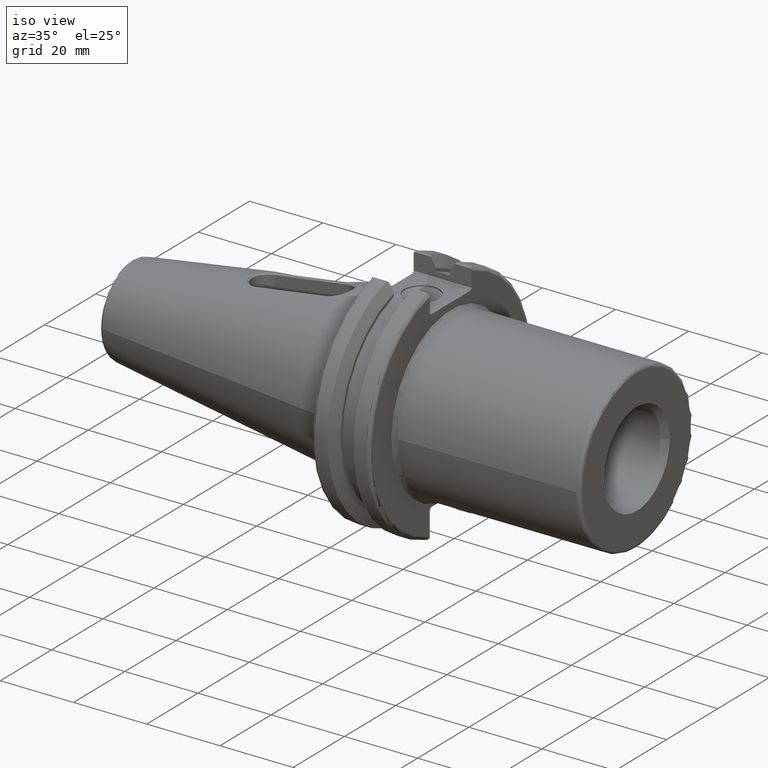
[diagram: clean part render]
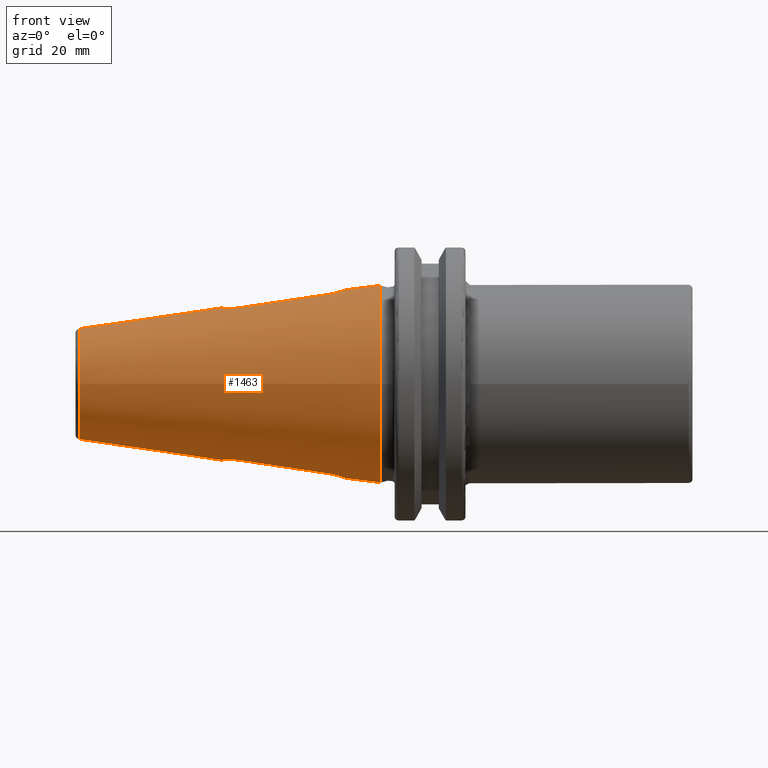
[diagram: tour spotlight — one face highlighted and labeled with its STEP entity id]
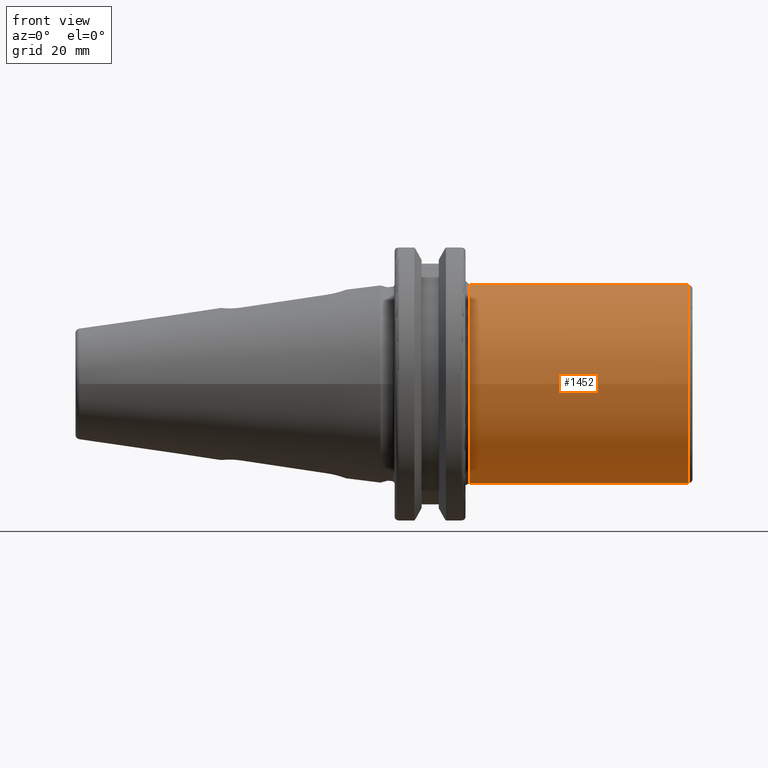
[diagram: tour spotlight — one face highlighted and labeled with its STEP entity id]
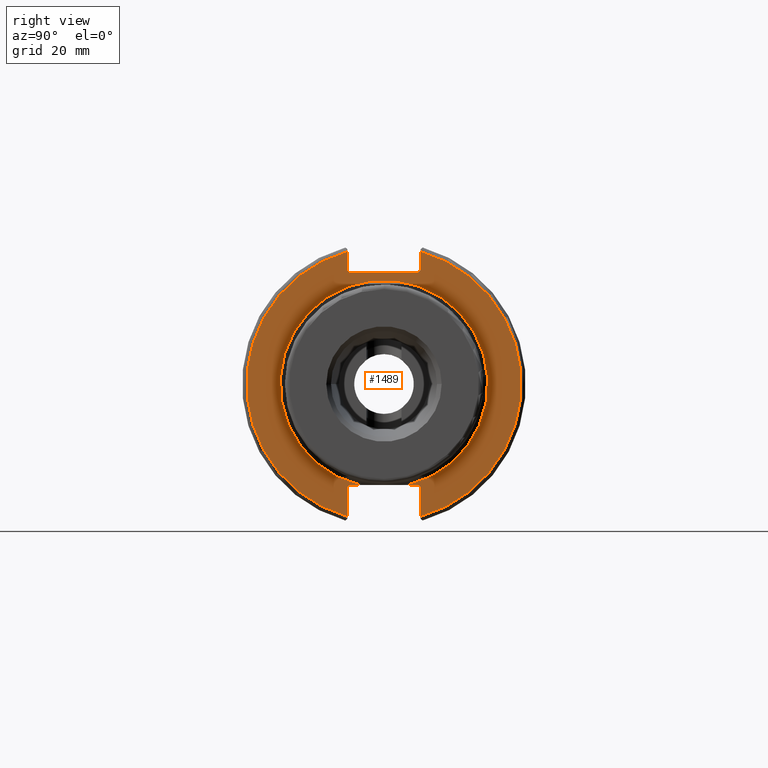
[diagram: tour spotlight — one face highlighted and labeled with its STEP entity id]
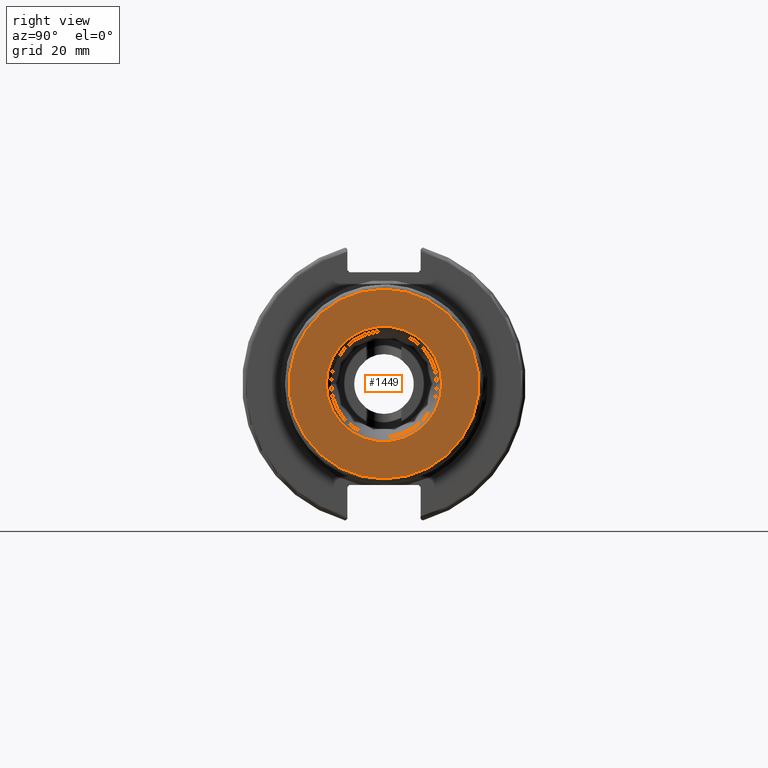
[diagram: tour spotlight — one face highlighted and labeled with its STEP entity id]
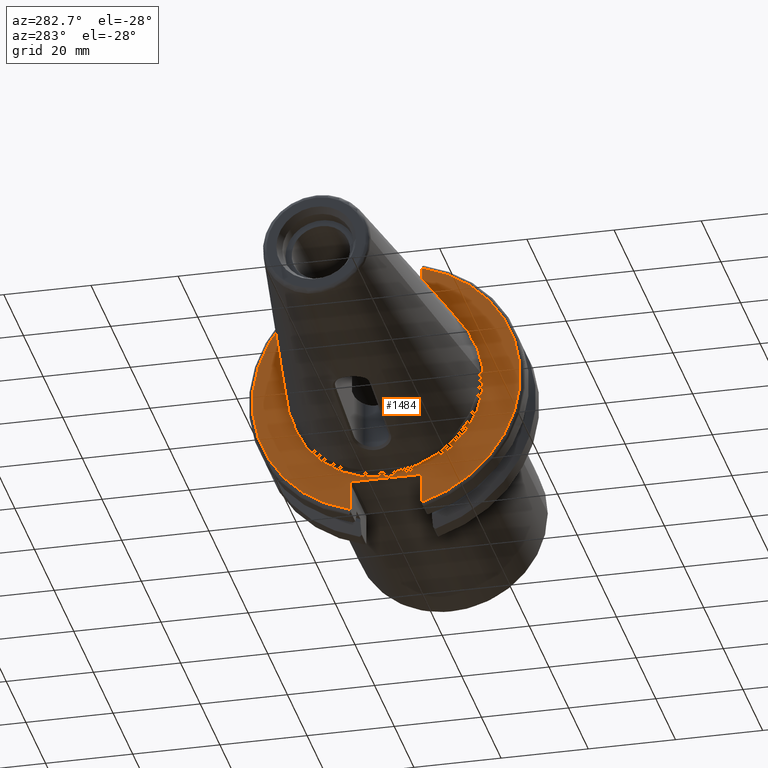
[diagram: tour spotlight — one face highlighted and labeled with its STEP entity id]
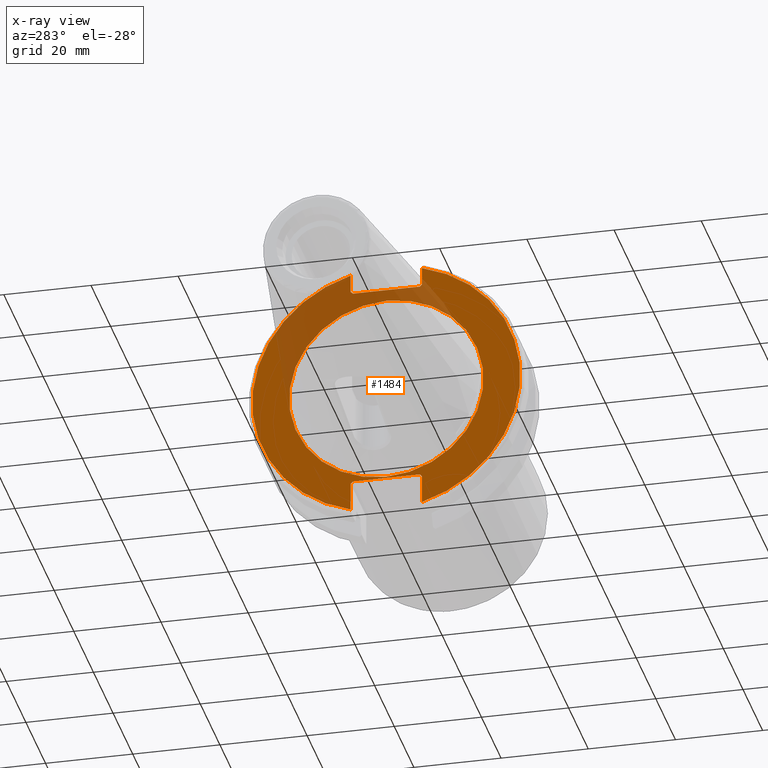
[diagram: x-ray of the same camera — body ghosted, this tour face saturated]
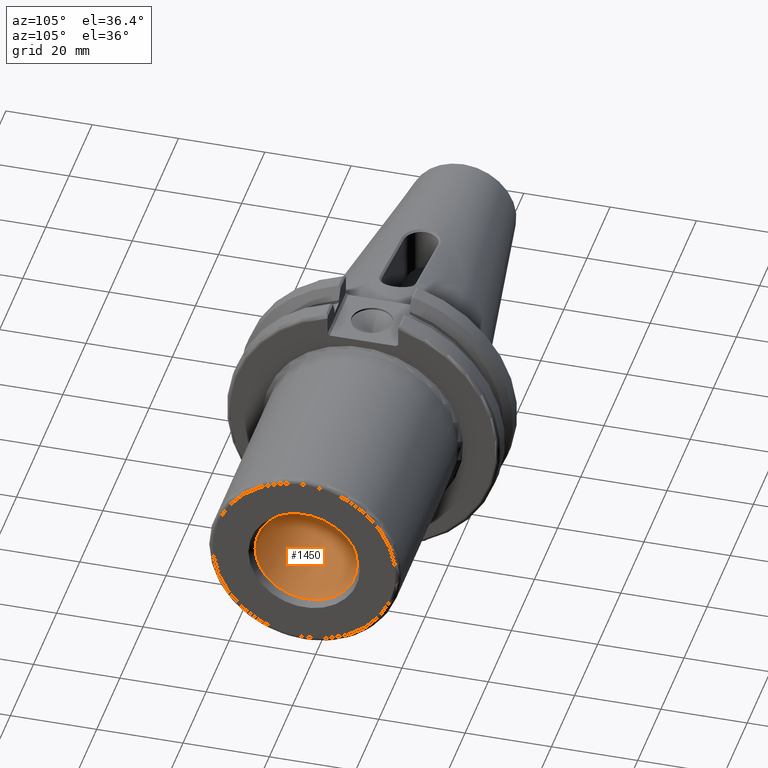
[diagram: tour spotlight — one face highlighted and labeled with its STEP entity id]
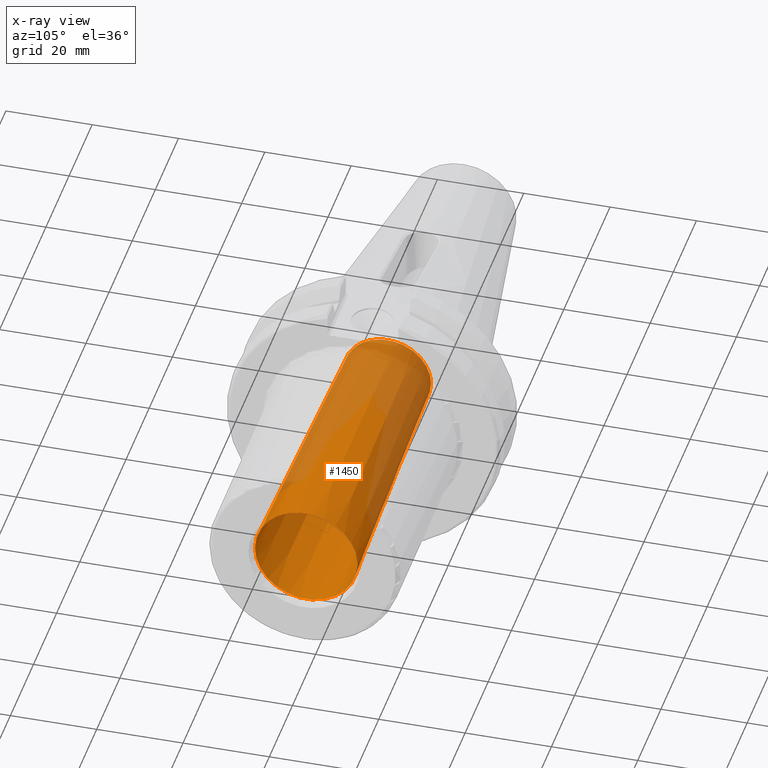
[diagram: x-ray of the same camera — body ghosted, this tour face saturated]
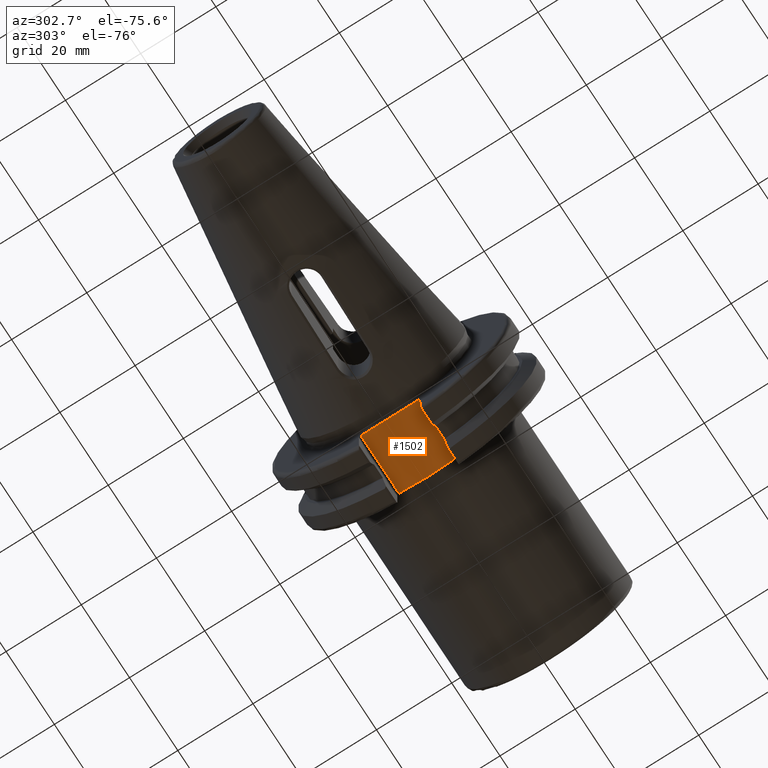
[diagram: tour spotlight — one face highlighted and labeled with its STEP entity id]
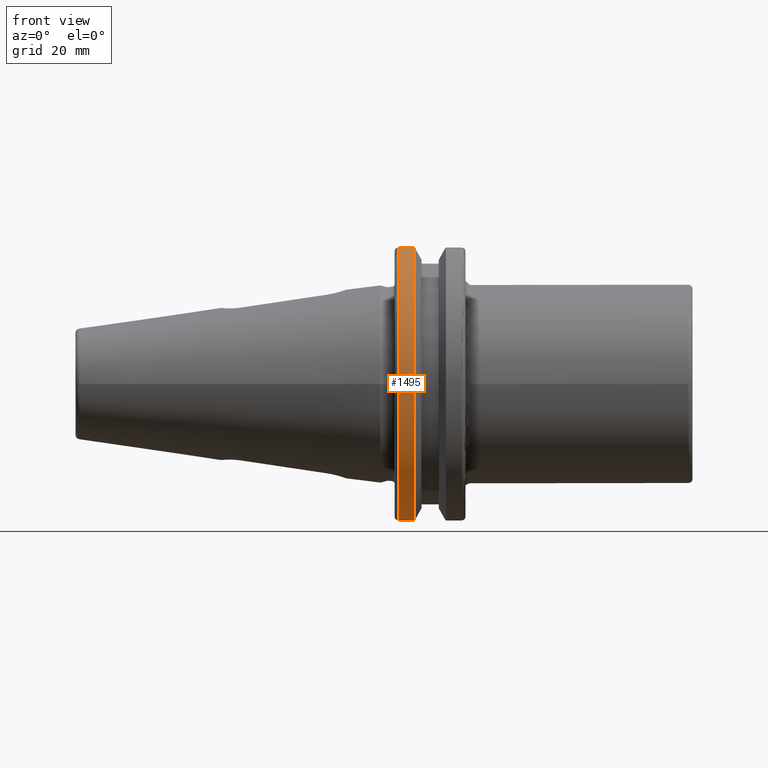
[diagram: tour spotlight — one face highlighted and labeled with its STEP entity id]
A machine part: a face-by-face anatomy tour. The part has 83 B-rep faces; the first image is the clean iso view, then the 8 largest visible faces are spotlighted one at a time (largest first), each with its STEP entity span.

Face 1 — front view, entity #1463. In plain terms, the highlighted conical surface has half-angle 8.297 deg.
Definition (entity closure, byte-faithful):
#49=B_SPLINE_CURVE_WITH_KNOTS('',3,(#2123,#2124,#2125,#2126,#2127,#2128,
#2129,#2130,#2131,#2132,#2133,#2134,#2135),.UNSPECIFIED.,.F.,.F.,(4,1,1,
1,1,1,1,1,1,1,4),(-2.3886430926328,-2.21617844353916,-2.04371379444553,
-2.00059763217212,-1.95748146989871,-1.87124914535189,-1.69878449625825,
-1.52631984716462,-1.4400875226178,-1.35385519807098,-1.18139054897734),
 .UNSPECIFIED.);
#52=B_SPLINE_CURVE_WITH_KNOTS('',3,(#2177,#2178,#2179,#2180),
 .UNSPECIFIED.,.F.,.F.,(4,4),(-1.93110974223985,-0.00688768728865662),
 .UNSPECIFIED.);
#53=B_SPLINE_CURVE_WITH_KNOTS('',3,(#2197,#2198,#2199,#2200),
 .UNSPECIFIED.,.F.,.F.,(4,4),(-0.00688768728890824,-2.11774500897956E-15),
 .UNSPECIFIED.);
#56=B_SPLINE_CURVE_WITH_KNOTS('',3,(#2291,#2292,#2293,#2294,#2295,#2296,
#2297,#2298,#2299,#2300,#2301,#2302,#2303,#2304,#2305,#2306),
 .UNSPECIFIED.,.F.,.F.,(4,1,1,1,1,1,1,1,1,1,1,1,1,4),(-1.17236581745393,
-1.00406709773589,-0.835768378017846,-0.814731038053091,-0.793693698088336,
-0.751619018158826,-0.667469658299806,-0.499170938581766,-0.415021578722747,
-0.372946898793237,-0.351909558828482,-0.330872218863727,-0.162573499145687,
0.00572522057235298),.UNSPECIFIED.);
#57=B_SPLINE_CURVE_WITH_KNOTS('',3,(#2323,#2324,#2325,#2326),
 .UNSPECIFIED.,.F.,.F.,(4,4),(0.00572522057235219,0.0129456162448444),
 .UNSPECIFIED.);
#59=B_SPLINE_CURVE_WITH_KNOTS('',3,(#2351,#2352,#2353,#2354),
 .UNSPECIFIED.,.F.,.F.,(4,4),(-1.92422205494951,2.77555756156289E-17),
 .UNSPECIFIED.);
#61=B_SPLINE_CURVE_WITH_KNOTS('',3,(#2377,#2378,#2379,#2380),
 .UNSPECIFIED.,.F.,.F.,(4,4),(-1.17958621321776,-1.17236581745393),
 .UNSPECIFIED.);
#63=B_SPLINE_CURVE_WITH_KNOTS('',3,(#2401,#2402,#2403,#2404),
 .UNSPECIFIED.,.F.,.F.,(4,4),(-1.93110974223986,-1.92422205494951),
 .UNSPECIFIED.);
#66=B_SPLINE_CURVE_WITH_KNOTS('',3,(#2442,#2443,#2444,#2445),
 .UNSPECIFIED.,.F.,.F.,(4,4),(-1.93110974223985,-0.00688768729034347),
 .UNSPECIFIED.);
#67=B_SPLINE_CURVE_WITH_KNOTS('',3,(#2447,#2448,#2449,#2450),
 .UNSPECIFIED.,.F.,.F.,(4,4),(1.17236581743025,1.17958621310274),
 .UNSPECIFIED.);
#68=B_SPLINE_CURVE_WITH_KNOTS('',3,(#2452,#2453,#2454,#2455,#2456,#2457,
#2458,#2459,#2460,#2461,#2462,#2463,#2464,#2465,#2466,#2467),
 .UNSPECIFIED.,.F.,.F.,(4,1,1,1,1,1,1,1,1,1,1,1,1,4),(-0.00572522059602791,
0.162573499122012,0.330872218840052,0.351909558804807,0.372946898769561,
0.415021578699071,0.499170938558091,0.667469658276131,0.751619018135151,
0.793693698064661,0.814731038029416,0.835768377994171,1.00406709771221,
1.17236581743025),.UNSPECIFIED.);
#69=B_SPLINE_CURVE_WITH_KNOTS('',3,(#2469,#2470,#2471,#2472),
 .UNSPECIFIED.,.F.,.F.,(4,4),(-0.0129456163598698,-0.00572522059602812),
 .UNSPECIFIED.);
#70=B_SPLINE_CURVE_WITH_KNOTS('',3,(#2474,#2475,#2476,#2477),
 .UNSPECIFIED.,.F.,.F.,(4,4),(-1.9242220549512,0.),.UNSPECIFIED.);
#71=B_SPLINE_CURVE_WITH_KNOTS('',3,(#2479,#2480,#2481,#2482),
 .UNSPECIFIED.,.F.,.F.,(4,4),(-1.93110974223985,-1.92422205495094),
 .UNSPECIFIED.);
#72=B_SPLINE_CURVE_WITH_KNOTS('',3,(#2484,#2485,#2486,#2487,#2488,#2489,
#2490,#2491,#2492,#2493,#2494,#2495,#2496),.UNSPECIFIED.,.F.,.F.,(4,1,1,
1,1,1,1,1,1,1,4),(-1.21844182627992,-1.04597717718629,-0.959744852639469,
-0.873512528092651,-0.701047878999014,-0.528583229905377,-0.442350905358559,
-0.39923474308515,-0.356118580811741,-0.183653931718104,-0.0111892826244674),
 .UNSPECIFIED.);
#73=B_SPLINE_CURVE_WITH_KNOTS('',3,(#2497,#2498,#2499,#2500),
 .UNSPECIFIED.,.F.,.F.,(4,4),(-0.00688768729034403,2.98747995085003E-15),
 .UNSPECIFIED.);
#127=FACE_BOUND('',#266,.T.);
#128=FACE_BOUND('',#267,.T.);
#181=FACE_OUTER_BOUND('',#265,.T.);
#265=EDGE_LOOP('',(#1048,#1049,#1050,#1051,#1052));
#266=EDGE_LOOP('',(#1053,#1054,#1055,#1056,#1057,#1058,#1059,#1060));
#267=EDGE_LOOP('',(#1061,#1062,#1063,#1064,#1065,#1066,#1067,#1068));
#352=LINE('',#2436,#457);
#457=VECTOR('',#1731,17.2484375);
#561=CIRCLE('',#1574,22.225);
#562=CIRCLE('',#1575,12.3966635780937);
#563=CIRCLE('',#1576,12.3966635780937);
#615=VERTEX_POINT('',#2120);
#616=VERTEX_POINT('',#2122);
#618=VERTEX_POINT('',#2167);
#621=VERTEX_POINT('',#2175);
#622=VERTEX_POINT('',#2269);
#625=VERTEX_POINT('',#2289);
#627=VERTEX_POINT('',#2348);
#628=VERTEX_POINT('',#2350);
#632=VERTEX_POINT('',#2433);
#633=VERTEX_POINT('',#2435);
#634=VERTEX_POINT('',#2437);
#635=VERTEX_POINT('',#2440);
#636=VERTEX_POINT('',#2441);
#637=VERTEX_POINT('',#2446);
#638=VERTEX_POINT('',#2451);
#639=VERTEX_POINT('',#2468);
#640=VERTEX_POINT('',#2473);
#641=VERTEX_POINT('',#2478);
#642=VERTEX_POINT('',#2483);
#769=EDGE_CURVE('',#615,#616,#49,.T.);
#775=EDGE_CURVE('',#621,#618,#52,.T.);
#776=EDGE_CURVE('',#618,#615,#53,.T.);
#781=EDGE_CURVE('',#625,#622,#56,.T.);
#782=EDGE_CURVE('',#622,#621,#57,.T.);
#785=EDGE_CURVE('',#627,#628,#59,.T.);
#788=EDGE_CURVE('',#628,#625,#61,.T.);
#790=EDGE_CURVE('',#616,#627,#63,.T.);
#795=EDGE_CURVE('',#632,#632,#561,.T.);
#796=EDGE_CURVE('',#632,#633,#352,.T.);
#797=EDGE_CURVE('',#634,#633,#562,.T.);
#798=EDGE_CURVE('',#633,#634,#563,.T.);
#799=EDGE_CURVE('',#635,#636,#66,.T.);
#800=EDGE_CURVE('',#637,#635,#67,.T.);
#801=EDGE_CURVE('',#638,#637,#68,.T.);
#802=EDGE_CURVE('',#639,#638,#69,.T.);
#803=EDGE_CURVE('',#640,#639,#70,.T.);
#804=EDGE_CURVE('',#641,#640,#71,.T.);
#805=EDGE_CURVE('',#642,#641,#72,.T.);
#806=EDGE_CURVE('',#636,#642,#73,.T.);
#1048=ORIENTED_EDGE('',*,*,#795,.F.);
#1049=ORIENTED_EDGE('',*,*,#796,.T.);
#1050=ORIENTED_EDGE('',*,*,#797,.F.);
#1051=ORIENTED_EDGE('',*,*,#798,.F.);
#1052=ORIENTED_EDGE('',*,*,#796,.F.);
#1053=ORIENTED_EDGE('',*,*,#799,.F.);
#1054=ORIENTED_EDGE('',*,*,#800,.F.);
#1055=ORIENTED_EDGE('',*,*,#801,.F.);
#1056=ORIENTED_EDGE('',*,*,#802,.F.);
#1057=ORIENTED_EDGE('',*,*,#803,.F.);
#1058=ORIENTED_EDGE('',*,*,#804,.F.);
#1059=ORIENTED_EDGE('',*,*,#805,.F.);
#1060=ORIENTED_EDGE('',*,*,#806,.F.);
#1061=ORIENTED_EDGE('',*,*,#785,.F.);
#1062=ORIENTED_EDGE('',*,*,#790,.F.);
#1063=ORIENTED_EDGE('',*,*,#769,.F.);
#1064=ORIENTED_EDGE('',*,*,#776,.F.);
#1065=ORIENTED_EDGE('',*,*,#775,.F.);
#1066=ORIENTED_EDGE('',*,*,#782,.F.);
#1067=ORIENTED_EDGE('',*,*,#781,.F.);
#1068=ORIENTED_EDGE('',*,*,#788,.F.);
#1440=CONICAL_SURFACE('',#1573,17.2484375,0.144812498238939);
#1463=ADVANCED_FACE('',(#181,#127,#128),#1440,.T.);
#1573=AXIS2_PLACEMENT_3D('',#2432,#1727,#1728);
#1574=AXIS2_PLACEMENT_3D('',#2434,#1729,#1730);
#1575=AXIS2_PLACEMENT_3D('',#2438,#1732,#1733);
#1576=AXIS2_PLACEMENT_3D('',#2439,#1734,#1735);
#1727=DIRECTION('center_axis',(1.,0.,0.));
#1728=DIRECTION('ref_axis',(0.,1.,0.));
#1729=DIRECTION('center_axis',(1.,0.,0.));
#1730=DIRECTION('ref_axis',(0.,0.,-1.));
#1731=DIRECTION('',(-0.989532981063282,0.144306893071729,1.76724974695192E-17));
#1732=DIRECTION('center_axis',(-1.,0.,0.));
#1733=DIRECTION('ref_axis',(0.,-1.,3.06161699786838E-17));
#1734=DIRECTION('center_axis',(-1.,0.,0.));
#1735=DIRECTION('ref_axis',(0.,-1.,3.06161699786838E-17));
#2120=CARTESIAN_POINT('',(-12.0850869740101,4.43960196905571,-19.975174205867));
#2122=CARTESIAN_POINT('',(-12.0850869740101,-4.4396019690557,-19.975174205867));
#2123=CARTESIAN_POINT('Ctrl Pts',(-12.0850869740101,4.43960196905571,-19.975174205867));
#2124=CARTESIAN_POINT('Ctrl Pts',(-11.4390656329607,4.43969851530465,-20.0716630613299));
#2125=CARTESIAN_POINT('Ctrl Pts',(-10.0733849127382,4.13179902143167,-20.3473549476756));
#2126=CARTESIAN_POINT('Ctrl Pts',(-8.91818932671839,3.19852246058254,-20.6878249127988));
#2127=CARTESIAN_POINT('Ctrl Pts',(-8.34032717740649,2.39567363851402,-20.8731689858171));
#2128=CARTESIAN_POINT('Ctrl Pts',(-8.00783407004168,1.80594296355411,-20.9841346426643));
#2129=CARTESIAN_POINT('Ctrl Pts',(-7.61558992901756,0.662345699261774,-21.1223245355693));
#2130=CARTESIAN_POINT('Ctrl Pts',(-7.60460427514461,-1.00354180793785,-21.1261042034651));
#2131=CARTESIAN_POINT('Ctrl Pts',(-8.39229806101603,-2.61110295183197,-20.8496700061355));
#2132=CARTESIAN_POINT('Ctrl Pts',(-9.2945514851207,-3.49475457005306,-20.5776694358205));
#2133=CARTESIAN_POINT('Ctrl Pts',(-10.417398067503,-4.21692560726604,-20.2771212609433));
#2134=CARTESIAN_POINT('Ctrl Pts',(-11.4390656329607,-4.43969851530465,-20.0716630613299));
#2135=CARTESIAN_POINT('Ctrl Pts',(-12.0850869740101,-4.4396019690557,-19.975174205867));
#2167=CARTESIAN_POINT('',(-12.158587551226,4.43959097584686,-19.9641961222854));
#2175=CARTESIAN_POINT('',(-31.1826318623482,4.43602769587507,-17.1118913643329));
#2177=CARTESIAN_POINT('Ctrl Pts',(-31.1826318623482,4.43602769587507,-17.1118913643329));
#2178=CARTESIAN_POINT('Ctrl Pts',(-25.3074135769042,4.43739743722929,-17.9966609526418));
#2179=CARTESIAN_POINT('Ctrl Pts',(-19.0013065252568,4.43856672202597,-18.9421512029565));
#2180=CARTESIAN_POINT('Ctrl Pts',(-12.158587551226,4.43959097584686,-19.9641961222854));
#2197=CARTESIAN_POINT('Ctrl Pts',(-12.1585875512287,4.43959097584685,-19.964196122285));
#2198=CARTESIAN_POINT('Ctrl Pts',(-12.1340942717874,4.43959464212851,-19.9678544972535));
#2199=CARTESIAN_POINT('Ctrl Pts',(-12.1095940812638,4.43959830653076,-19.9715138581674));
#2200=CARTESIAN_POINT('Ctrl Pts',(-12.0850869740101,4.43960196905571,-19.975174205867));
#2269=CARTESIAN_POINT('',(-31.2637170954579,4.43527507664053,-17.0998705093265));
#2289=CARTESIAN_POINT('',(-31.2637170954579,-4.43527507664053,-17.0998705093265));
#2291=CARTESIAN_POINT('Ctrl Pts',(-31.2637170954579,-4.43527507664053,-17.0998705093265));
#2292=CARTESIAN_POINT('Ctrl Pts',(-31.8921932680438,-4.42375473179588,-17.0081730162199));
#2293=CARTESIAN_POINT('Ctrl Pts',(-33.2445348438466,-4.11128594012964,-16.8904830129448));
#2294=CARTESIAN_POINT('Ctrl Pts',(-34.3498823069398,-3.20212830675643,-16.9245205287575));
#2295=CARTESIAN_POINT('Ctrl Pts',(-34.8380882679562,-2.55296888369002,-16.9541484563769));
#2296=CARTESIAN_POINT('Ctrl Pts',(-35.0221735562071,-2.27671658788669,-16.9669927895943));
#2297=CARTESIAN_POINT('Ctrl Pts',(-35.3055545976124,-1.76827852481214,-16.9901388071865));
#2298=CARTESIAN_POINT('Ctrl Pts',(-35.6901636047362,-0.635787404701295,
-17.0307966498185));
#2299=CARTESIAN_POINT('Ctrl Pts',(-35.6870016814473,0.63652618744697,-17.0310025047228));
#2300=CARTESIAN_POINT('Ctrl Pts',(-35.3049272814794,1.76687120710684,-16.9902188548142));
#2301=CARTESIAN_POINT('Ctrl Pts',(-35.0215507643961,2.27698321532383,-16.9670668067721));
#2302=CARTESIAN_POINT('Ctrl Pts',(-34.8375065739237,2.55305756975257,-16.9542187037946));
#2303=CARTESIAN_POINT('Ctrl Pts',(-34.3493595288027,3.20229720994529,-16.9245829929821));
#2304=CARTESIAN_POINT('Ctrl Pts',(-33.2442143500523,4.11133831240215,-16.8905216923726));
#2305=CARTESIAN_POINT('Ctrl Pts',(-31.8921932731378,4.42375473170251,-17.0081730154766));
#2306=CARTESIAN_POINT('Ctrl Pts',(-31.2637170954579,4.43527507664053,-17.0998705093265));
#2323=CARTESIAN_POINT('Ctrl Pts',(-31.2637170954579,4.43527507664053,-17.0998705093265));
#2324=CARTESIAN_POINT('Ctrl Pts',(-31.2367540461775,4.43576932549088,-17.1038045391806));
#2325=CARTESIAN_POINT('Ctrl Pts',(-31.2097226376035,4.43602137996417,-17.1078116701148));
#2326=CARTESIAN_POINT('Ctrl Pts',(-31.1826318623482,4.43602769587507,-17.111891364333));
#2348=CARTESIAN_POINT('',(-12.1585875512259,-4.43959097584685,-19.9641961222854));
#2350=CARTESIAN_POINT('',(-31.1826318623482,-4.43602769587506,-17.1118913643329));
#2351=CARTESIAN_POINT('Ctrl Pts',(-12.1585875512259,-4.43959097584685,-19.9641961222854));
#2352=CARTESIAN_POINT('Ctrl Pts',(-19.0013065235768,-4.43856672202608,-18.9421512032074));
#2353=CARTESIAN_POINT('Ctrl Pts',(-25.3074135756928,-4.43739743722973,-17.9966609528242));
#2354=CARTESIAN_POINT('Ctrl Pts',(-31.1826318623482,-4.43602769587506,-17.1118913643329));
#2377=CARTESIAN_POINT('Ctrl Pts',(-31.1826318623483,-4.43602769587506,-17.1118913643329));
#2378=CARTESIAN_POINT('Ctrl Pts',(-31.2097226374872,-4.43602137996419,-17.1078116701323));
#2379=CARTESIAN_POINT('Ctrl Pts',(-31.2367540460549,-4.43576932549312,-17.1038045391985));
#2380=CARTESIAN_POINT('Ctrl Pts',(-31.2637170954579,-4.43527507664053,-17.0998705093265));
#2401=CARTESIAN_POINT('Ctrl Pts',(-12.0850869740101,-4.4396019690557,-19.975174205867));
#2402=CARTESIAN_POINT('Ctrl Pts',(-12.1095940812628,-4.43959830653076,-19.9715138581676));
#2403=CARTESIAN_POINT('Ctrl Pts',(-12.1340942717855,-4.43959464212851,-19.9678544972537));
#2404=CARTESIAN_POINT('Ctrl Pts',(-12.1585875512259,-4.43959097584685,-19.9641961222854));
#2432=CARTESIAN_POINT('Origin',(-34.125,0.,0.));
#2433=CARTESIAN_POINT('',(0.,-22.225,-2.72177751110499E-15));
#2434=CARTESIAN_POINT('Origin',(0.,0.,0.));
#2435=CARTESIAN_POINT('',(-67.3943068930717,-12.3966635780937,-1.5181534371019E-15));
#2436=CARTESIAN_POINT('',(-34.125,-17.2484375,-2.11232437746682E-15));
#2437=CARTESIAN_POINT('',(-67.3943068930717,-1.5181534371019E-15,12.3966635780937));
#2438=CARTESIAN_POINT('Origin',(-67.3943068930717,0.,-1.89769179637738E-15));
#2439=CARTESIAN_POINT('Origin',(-67.3943068930717,0.,-1.89769179637738E-15));
#2440=CARTESIAN_POINT('',(-31.1826318623482,-4.43602769587506,17.1118913643329));
#2441=CARTESIAN_POINT('',(-12.1585875512259,-4.43959097584685,19.9641961222854));
#2442=CARTESIAN_POINT('Ctrl Pts',(-31.1826318623482,-4.43602769587506,17.1118913643329));
#2443=CARTESIAN_POINT('Ctrl Pts',(-25.3074135756928,-4.43739743722973,17.9966609528242));
#2444=CARTESIAN_POINT('Ctrl Pts',(-19.0013065235768,-4.43856672202608,18.9421512032074));
#2445=CARTESIAN_POINT('Ctrl Pts',(-12.1585875512259,-4.43959097584685,19.9641961222854));
#2446=CARTESIAN_POINT('',(-31.2637170954579,-4.43527507664053,17.0998705093265));
#2447=CARTESIAN_POINT('Ctrl Pts',(-31.2637170954579,-4.43527507664053,17.0998705093265));
#2448=CARTESIAN_POINT('Ctrl Pts',(-31.2367540461775,-4.43576932549088,17.1038045391806));
#2449=CARTESIAN_POINT('Ctrl Pts',(-31.2097226376036,-4.43602137996416,17.1078116701148));
#2450=CARTESIAN_POINT('Ctrl Pts',(-31.1826318623483,-4.43602769587506,17.1118913643329));
#2451=CARTESIAN_POINT('',(-31.2637170954579,4.43527507664053,17.0998705093265));
#2452=CARTESIAN_POINT('Ctrl Pts',(-31.2637170954579,4.43527507664053,17.0998705093265));
#2453=CARTESIAN_POINT('Ctrl Pts',(-31.8921932680437,4.42375473179588,17.0081730162199));
#2454=CARTESIAN_POINT('Ctrl Pts',(-33.2445348438465,4.11128594012965,16.8904830129448));
#2455=CARTESIAN_POINT('Ctrl Pts',(-34.3498823069398,3.20212830675643,16.9245205287574));
#2456=CARTESIAN_POINT('Ctrl Pts',(-34.8380882679561,2.55296888369003,16.9541484563769));
#2457=CARTESIAN_POINT('Ctrl Pts',(-35.022173556207,2.27671658788669,16.9669927895943));
#2458=CARTESIAN_POINT('Ctrl Pts',(-35.3055545976124,1.76827852481214,16.9901388071865));
#2459=CARTESIAN_POINT('Ctrl Pts',(-35.6901636047362,0.635787404701302,17.0307966498185));
#2460=CARTESIAN_POINT('Ctrl Pts',(-35.6870016814473,-0.63652618744698,17.0310025047228));
#2461=CARTESIAN_POINT('Ctrl Pts',(-35.3049272814795,-1.76687120710684,16.9902188548142));
#2462=CARTESIAN_POINT('Ctrl Pts',(-35.0215507643962,-2.27698321532384,16.9670668067721));
#2463=CARTESIAN_POINT('Ctrl Pts',(-34.8375065739238,-2.55305756975257,16.9542187037946));
#2464=CARTESIAN_POINT('Ctrl Pts',(-34.3493595288028,-3.2022972099453,16.9245829929821));
#2465=CARTESIAN_POINT('Ctrl Pts',(-33.2442143500524,-4.11133831240214,16.8905216923727));
#2466=CARTESIAN_POINT('Ctrl Pts',(-31.8921932731379,-4.4237547317025,17.0081730154766));
#2467=CARTESIAN_POINT('Ctrl Pts',(-31.2637170954579,-4.43527507664053,17.0998705093265));
#2468=CARTESIAN_POINT('',(-31.1826318623482,4.43602769587507,17.1118913643329));
#2469=CARTESIAN_POINT('Ctrl Pts',(-31.1826318623482,4.43602769587507,17.111891364333));
#2470=CARTESIAN_POINT('Ctrl Pts',(-31.2097226374872,4.4360213799642,17.1078116701323));
#2471=CARTESIAN_POINT('Ctrl Pts',(-31.2367540460549,4.43576932549313,17.1038045391985));
#2472=CARTESIAN_POINT('Ctrl Pts',(-31.2637170954579,4.43527507664053,17.0998705093265));
#2473=CARTESIAN_POINT('',(-12.158587551226,4.43959097584686,19.9641961222854));
#2474=CARTESIAN_POINT('Ctrl Pts',(-12.158587551226,4.43959097584686,19.9641961222854));
#2475=CARTESIAN_POINT('Ctrl Pts',(-19.0013065252568,4.43856672202597,18.9421512029565));
#2476=CARTESIAN_POINT('Ctrl Pts',(-25.3074135769041,4.43739743722929,17.9966609526418));
#2477=CARTESIAN_POINT('Ctrl Pts',(-31.1826318623482,4.43602769587507,17.1118913643329));
#2478=CARTESIAN_POINT('',(-12.0850869740101,4.43960196905571,19.975174205867));
#2479=CARTESIAN_POINT('Ctrl Pts',(-12.0850869740101,4.43960196905571,19.975174205867));
#2480=CARTESIAN_POINT('Ctrl Pts',(-12.1095940812638,4.43959830653076,19.9715138581674));
#2481=CARTESIAN_POINT('Ctrl Pts',(-12.1340942717874,4.43959464212851,19.9678544972535));
#2482=CARTESIAN_POINT('Ctrl Pts',(-12.1585875512287,4.43959097584685,19.964196122285));
#2483=CARTESIAN_POINT('',(-12.0850869740101,-4.4396019690557,19.975174205867));
#2484=CARTESIAN_POINT('Ctrl Pts',(-12.0850869740101,-4.4396019690557,19.975174205867));
#2485=CARTESIAN_POINT('Ctrl Pts',(-11.4390656329607,-4.43969851530464,20.0716630613299));
#2486=CARTESIAN_POINT('Ctrl Pts',(-10.417398067503,-4.21692560726604,20.2771212609433));
#2487=CARTESIAN_POINT('Ctrl Pts',(-9.2945514851207,-3.49475457005307,20.5776694358205));
#2488=CARTESIAN_POINT('Ctrl Pts',(-8.39229806101603,-2.61110295183197,20.8496700061356));
#2489=CARTESIAN_POINT('Ctrl Pts',(-7.60460427514461,-1.00354180793785,21.1261042034651));
#2490=CARTESIAN_POINT('Ctrl Pts',(-7.61558992901756,0.662345699261778,21.1223245355693));
#2491=CARTESIAN_POINT('Ctrl Pts',(-8.00783407004168,1.80594296355411,20.9841346426643));
#2492=CARTESIAN_POINT('Ctrl Pts',(-8.3403271774065,2.39567363851403,20.8731689858171));
#2493=CARTESIAN_POINT('Ctrl Pts',(-8.9181893267184,3.19852246058254,20.6878249127988));
#2494=CARTESIAN_POINT('Ctrl Pts',(-10.0733849127382,4.13179902143168,20.3473549476756));
#2495=CARTESIAN_POINT('Ctrl Pts',(-11.4390656329607,4.43969851530465,20.0716630613299));
#2496=CARTESIAN_POINT('Ctrl Pts',(-12.0850869740101,4.43960196905571,19.975174205867));
#2497=CARTESIAN_POINT('Ctrl Pts',(-12.1585875512259,-4.43959097584685,19.9641961222854));
#2498=CARTESIAN_POINT('Ctrl Pts',(-12.1340942717855,-4.43959464212851,19.9678544972537));
#2499=CARTESIAN_POINT('Ctrl Pts',(-12.1095940812628,-4.43959830653076,19.9715138581676));
#2500=CARTESIAN_POINT('Ctrl Pts',(-12.0850869740101,-4.4396019690557,19.975174205867));

Face 2 — front view, entity #1452. In plain terms, the highlighted cylindrical surface (bore or boss wall) has radius 22.225 mm, axis along (1, 0, 0).
Definition (entity closure, byte-faithful):
#102=CYLINDRICAL_SURFACE('',#1566,22.225);
#170=FACE_OUTER_BOUND('',#254,.T.);
#254=EDGE_LOOP('',(#997,#998,#999,#1000,#1001,#1002));
#341=LINE('',#2045,#446);
#446=VECTOR('',#1704,22.225);
#555=CIRCLE('',#1564,22.225);
#556=CIRCLE('',#1565,22.225);
#557=CIRCLE('',#1567,22.225);
#558=CIRCLE('',#1568,22.225);
#607=VERTEX_POINT('',#2038);
#608=VERTEX_POINT('',#2040);
#609=VERTEX_POINT('',#2044);
#610=VERTEX_POINT('',#2046);
#759=EDGE_CURVE('',#607,#608,#555,.T.);
#760=EDGE_CURVE('',#608,#607,#556,.T.);
#761=EDGE_CURVE('',#608,#609,#341,.T.);
#762=EDGE_CURVE('',#610,#609,#557,.T.);
#763=EDGE_CURVE('',#609,#610,#558,.T.);
#997=ORIENTED_EDGE('',*,*,#760,.F.);
#998=ORIENTED_EDGE('',*,*,#761,.T.);
#999=ORIENTED_EDGE('',*,*,#762,.F.);
#1000=ORIENTED_EDGE('',*,*,#763,.F.);
#1001=ORIENTED_EDGE('',*,*,#761,.F.);
#1002=ORIENTED_EDGE('',*,*,#759,.F.);
#1452=ADVANCED_FACE('',(#170),#102,.T.);
#1564=AXIS2_PLACEMENT_3D('',#2041,#1698,#1699);
#1565=AXIS2_PLACEMENT_3D('',#2042,#1700,#1701);
#1566=AXIS2_PLACEMENT_3D('',#2043,#1702,#1703);
#1567=AXIS2_PLACEMENT_3D('',#2047,#1705,#1706);
#1568=AXIS2_PLACEMENT_3D('',#2048,#1707,#1708);
#1698=DIRECTION('center_axis',(1.,0.,0.));
#1699=DIRECTION('ref_axis',(0.,-1.,1.83697019872103E-16));
#1700=DIRECTION('center_axis',(1.,0.,0.));
#1701=DIRECTION('ref_axis',(0.,-1.,1.83697019872103E-16));
#1702=DIRECTION('center_axis',(1.,0.,0.));
#1703=DIRECTION('ref_axis',(0.,1.,0.));
#1704=DIRECTION('',(-1.,0.,0.));
#1705=DIRECTION('center_axis',(-1.,0.,0.));
#1706=DIRECTION('ref_axis',(0.,-1.,-1.22464679914735E-16));
#1707=DIRECTION('center_axis',(-1.,0.,0.));
#1708=DIRECTION('ref_axis',(0.,-1.,-1.22464679914735E-16));
#2038=CARTESIAN_POINT('',(68.85,-2.72177751110499E-15,22.225));
#2040=CARTESIAN_POINT('',(68.85,-22.225,-2.72177751110499E-15));
#2041=CARTESIAN_POINT('Origin',(68.85,0.,0.));
#2042=CARTESIAN_POINT('Origin',(68.85,0.,0.));
#2043=CARTESIAN_POINT('Origin',(44.45,0.,0.));
#2044=CARTESIAN_POINT('',(20.05,-22.225,-2.72177751110499E-15));
#2045=CARTESIAN_POINT('',(44.45,-22.225,-2.72177751110499E-15));
#2046=CARTESIAN_POINT('',(20.05,-2.72177751110499E-15,-22.225));
#2047=CARTESIAN_POINT('Origin',(20.05,0.,0.));
#2048=CARTESIAN_POINT('Origin',(20.05,0.,0.));

Face 3 — right view, entity #1489. In plain terms, the highlighted planar face has unit normal (1, 0, 0).
Definition (entity closure, byte-faithful):
#143=PLANE('',#1609);
#207=FACE_OUTER_BOUND('',#294,.T.);
#294=EDGE_LOOP('',(#1222,#1223,#1224,#1225,#1226,#1227,#1228,#1229,#1230,
#1231,#1232,#1233,#1234,#1235));
#394=LINE('',#2976,#499);
#400=LINE('',#3002,#505);
#401=LINE('',#3003,#506);
#402=LINE('',#3005,#507);
#403=LINE('',#3007,#508);
#404=LINE('',#3009,#509);
#405=LINE('',#3011,#510);
#406=LINE('',#3013,#511);
#407=LINE('',#3017,#512);
#408=LINE('',#3019,#513);
#409=LINE('',#3020,#514);
#499=VECTOR('',#1841,10.);
#505=VECTOR('',#1849,10.);
#506=VECTOR('',#1850,10.);
#507=VECTOR('',#1851,10.);
#508=VECTOR('',#1852,10.);
#509=VECTOR('',#1853,10.);
#510=VECTOR('',#1854,10.);
#511=VECTOR('',#1855,10.);
#512=VECTOR('',#1858,10.);
#513=VECTOR('',#1859,10.);
#514=VECTOR('',#1860,10.);
#560=CIRCLE('',#1571,23.225);
#577=CIRCLE('',#1605,30.75);
#579=CIRCLE('',#1610,30.75);
#612=VERTEX_POINT('',#2052);
#613=VERTEX_POINT('',#2059);
#685=VERTEX_POINT('',#2931);
#686=VERTEX_POINT('',#2938);
#692=VERTEX_POINT('',#2975);
#699=VERTEX_POINT('',#3001);
#700=VERTEX_POINT('',#3004);
#701=VERTEX_POINT('',#3006);
#702=VERTEX_POINT('',#3008);
#703=VERTEX_POINT('',#3010);
#704=VERTEX_POINT('',#3012);
#705=VERTEX_POINT('',#3014);
#706=VERTEX_POINT('',#3016);
#707=VERTEX_POINT('',#3018);
#766=EDGE_CURVE('',#612,#613,#560,.T.);
#872=EDGE_CURVE('',#685,#686,#577,.T.);
#880=EDGE_CURVE('',#692,#686,#394,.T.);
#889=EDGE_CURVE('',#612,#699,#400,.T.);
#890=EDGE_CURVE('',#692,#699,#401,.T.);
#891=EDGE_CURVE('',#685,#700,#402,.T.);
#892=EDGE_CURVE('',#701,#700,#403,.T.);
#893=EDGE_CURVE('',#701,#702,#404,.T.);
#894=EDGE_CURVE('',#703,#702,#405,.T.);
#895=EDGE_CURVE('',#703,#704,#406,.T.);
#896=EDGE_CURVE('',#705,#704,#579,.T.);
#897=EDGE_CURVE('',#705,#706,#407,.T.);
#898=EDGE_CURVE('',#707,#706,#408,.T.);
#899=EDGE_CURVE('',#707,#613,#409,.T.);
#1222=ORIENTED_EDGE('',*,*,#766,.F.);
#1223=ORIENTED_EDGE('',*,*,#889,.T.);
#1224=ORIENTED_EDGE('',*,*,#890,.F.);
#1225=ORIENTED_EDGE('',*,*,#880,.T.);
#1226=ORIENTED_EDGE('',*,*,#872,.F.);
#1227=ORIENTED_EDGE('',*,*,#891,.T.);
#1228=ORIENTED_EDGE('',*,*,#892,.F.);
#1229=ORIENTED_EDGE('',*,*,#893,.T.);
#1230=ORIENTED_EDGE('',*,*,#894,.F.);
#1231=ORIENTED_EDGE('',*,*,#895,.T.);
#1232=ORIENTED_EDGE('',*,*,#896,.F.);
#1233=ORIENTED_EDGE('',*,*,#897,.T.);
#1234=ORIENTED_EDGE('',*,*,#898,.F.);
#1235=ORIENTED_EDGE('',*,*,#899,.T.);
#1489=ADVANCED_FACE('',(#207),#143,.T.);
#1571=AXIS2_PLACEMENT_3D('',#2060,#1713,#1714);
#1605=AXIS2_PLACEMENT_3D('',#2939,#1831,#1832);
#1609=AXIS2_PLACEMENT_3D('',#3000,#1847,#1848);
#1610=AXIS2_PLACEMENT_3D('',#3015,#1856,#1857);
#1713=DIRECTION('center_axis',(1.,0.,0.));
#1714=DIRECTION('ref_axis',(0.,-1.,-1.22464679914735E-16));
#1831=DIRECTION('center_axis',(-1.,0.,0.));
#1832=DIRECTION('ref_axis',(0.,1.,-6.12323399573677E-17));
#1841=DIRECTION('',(0.,0.,-1.));
#1847=DIRECTION('center_axis',(1.,0.,0.));
#1848=DIRECTION('ref_axis',(0.,0.,-1.));
#1849=DIRECTION('',(0.,1.,0.));
#1850=DIRECTION('',(0.,-0.707106781186549,0.707106781186546));
#1851=DIRECTION('',(0.,0.,-1.));
#1852=DIRECTION('',(0.,0.707106781186549,0.707106781186546));
#1853=DIRECTION('',(0.,-1.,0.));
#1854=DIRECTION('',(0.,0.70710678118655,-0.707106781186545));
#1855=DIRECTION('',(0.,0.,1.));
#1856=DIRECTION('center_axis',(-1.,0.,0.));
#1857=DIRECTION('ref_axis',(0.,-1.,1.60812264967664E-16));
#1858=DIRECTION('',(0.,0.,1.));
#1859=DIRECTION('',(0.,-0.707106781186549,-0.707106781186546));
#1860=DIRECTION('',(0.,1.,0.));
#2052=CARTESIAN_POINT('',(19.05,5.35169365715191,-22.6));
#2059=CARTESIAN_POINT('',(19.05,-5.35169365715191,-22.6));
#2060=CARTESIAN_POINT('Origin',(19.05,0.,0.));
#2931=CARTESIAN_POINT('',(19.05,8.19,29.6392712461019));
#2938=CARTESIAN_POINT('',(19.05,8.19,-29.6392712461019));
#2939=CARTESIAN_POINT('Origin',(19.05,0.,0.));
#2975=CARTESIAN_POINT('',(19.05,8.19,-23.1));
#2976=CARTESIAN_POINT('',(19.05,8.19,-11.3));
#3000=CARTESIAN_POINT('Origin',(19.05,0.,0.));
#3001=CARTESIAN_POINT('',(19.05,7.69,-22.6));
#3002=CARTESIAN_POINT('',(19.05,-2.77555756156289E-16,-22.6));
#3003=CARTESIAN_POINT('',(19.05,0.242499999999989,-15.1525));
#3004=CARTESIAN_POINT('',(19.05,8.19,25.5));
#3005=CARTESIAN_POINT('',(19.05,8.19,12.5));
#3006=CARTESIAN_POINT('',(19.05,7.69,25.));
#3007=CARTESIAN_POINT('',(19.05,-0.35750000000001,16.9525));
#3008=CARTESIAN_POINT('',(19.05,-7.69,25.));
#3009=CARTESIAN_POINT('',(19.05,0.,25.));
#3010=CARTESIAN_POINT('',(19.05,-8.19,25.5));
#3011=CARTESIAN_POINT('',(19.05,0.357500000000014,16.9525));
#3012=CARTESIAN_POINT('',(19.05,-8.19,29.6392712461019));
#3013=CARTESIAN_POINT('',(19.05,-8.19,12.5));
#3014=CARTESIAN_POINT('',(19.05,-8.19,-29.6392712461019));
#3015=CARTESIAN_POINT('Origin',(19.05,0.,0.));
#3016=CARTESIAN_POINT('',(19.05,-8.19,-23.1));
#3017=CARTESIAN_POINT('',(19.05,-8.19,-11.3));
#3018=CARTESIAN_POINT('',(19.05,-7.69,-22.6));
#3019=CARTESIAN_POINT('',(19.05,-0.242499999999991,-15.1525));
#3020=CARTESIAN_POINT('',(19.05,-2.77555756156289E-16,-22.6));

Face 4 — right view, entity #1449. In plain terms, the highlighted planar face has unit normal (1, 0, 0).
Definition (entity closure, byte-faithful):
#126=FACE_BOUND('',#251,.T.);
#133=PLANE('',#1558);
#167=FACE_OUTER_BOUND('',#250,.T.);
#250=EDGE_LOOP('',(#985));
#251=EDGE_LOOP('',(#986));
#551=CIRCLE('',#1557,12.9125);
#552=CIRCLE('',#1559,21.225);
#604=VERTEX_POINT('',#2027);
#605=VERTEX_POINT('',#2031);
#754=EDGE_CURVE('',#604,#604,#551,.T.);
#755=EDGE_CURVE('',#605,#605,#552,.T.);
#985=ORIENTED_EDGE('',*,*,#755,.F.);
#986=ORIENTED_EDGE('',*,*,#754,.F.);
#1449=ADVANCED_FACE('',(#167,#126),#133,.T.);
#1557=AXIS2_PLACEMENT_3D('',#2029,#1683,#1684);
#1558=AXIS2_PLACEMENT_3D('',#2030,#1685,#1686);
#1559=AXIS2_PLACEMENT_3D('',#2032,#1687,#1688);
#1683=DIRECTION('center_axis',(1.,0.,0.));
#1684=DIRECTION('ref_axis',(0.,-1.,0.));
#1685=DIRECTION('center_axis',(1.,0.,0.));
#1686=DIRECTION('ref_axis',(0.,0.,-1.));
#1687=DIRECTION('center_axis',(-1.,0.,0.));
#1688=DIRECTION('ref_axis',(0.,-1.,1.83697019872103E-16));
#2027=CARTESIAN_POINT('',(69.85,12.9125,1.58132517939902E-15));
#2029=CARTESIAN_POINT('Origin',(69.85,0.,0.));
#2030=CARTESIAN_POINT('Origin',(69.85,11.9125,0.));
#2031=CARTESIAN_POINT('',(69.85,-2.59931283119026E-15,21.225));
#2032=CARTESIAN_POINT('Origin',(69.85,0.,0.));

Face 5 — auxiliary view, entity #1484. An x-ray twin of the same camera follows (body ghosted, this face saturated) — the face is partly hidden behind the body. In plain terms, the highlighted planar face has unit normal (-1, 0, 0).
Definition (entity closure, byte-faithful):
#129=FACE_BOUND('',#289,.T.);
#140=PLANE('',#1599);
#202=FACE_OUTER_BOUND('',#288,.T.);
#288=EDGE_LOOP('',(#1182,#1183,#1184,#1185,#1186,#1187,#1188,#1189,#1190,
#1191,#1192,#1193));
#289=EDGE_LOOP('',(#1194));
#381=LINE('',#2905,#486);
#382=LINE('',#2907,#487);
#383=LINE('',#2909,#488);
#384=LINE('',#2911,#489);
#385=LINE('',#2913,#490);
#386=LINE('',#2917,#491);
#387=LINE('',#2919,#492);
#388=LINE('',#2921,#493);
#389=LINE('',#2923,#494);
#390=LINE('',#2924,#495);
#486=VECTOR('',#1812,10.);
#487=VECTOR('',#1813,10.);
#488=VECTOR('',#1814,10.);
#489=VECTOR('',#1815,10.);
#490=VECTOR('',#1816,10.);
#491=VECTOR('',#1819,10.);
#492=VECTOR('',#1820,10.);
#493=VECTOR('',#1821,10.);
#494=VECTOR('',#1822,10.);
#495=VECTOR('',#1823,10.);
#572=CIRCLE('',#1597,22.3);
#574=CIRCLE('',#1600,30.75);
#575=CIRCLE('',#1601,30.75);
#670=VERTEX_POINT('',#2896);
#671=VERTEX_POINT('',#2901);
#672=VERTEX_POINT('',#2902);
#673=VERTEX_POINT('',#2904);
#674=VERTEX_POINT('',#2906);
#675=VERTEX_POINT('',#2908);
#676=VERTEX_POINT('',#2910);
#677=VERTEX_POINT('',#2912);
#678=VERTEX_POINT('',#2914);
#679=VERTEX_POINT('',#2916);
#680=VERTEX_POINT('',#2918);
#681=VERTEX_POINT('',#2920);
#682=VERTEX_POINT('',#2922);
#855=EDGE_CURVE('',#670,#670,#572,.T.);
#857=EDGE_CURVE('',#671,#672,#574,.T.);
#858=EDGE_CURVE('',#671,#673,#381,.T.);
#859=EDGE_CURVE('',#674,#673,#382,.T.);
#860=EDGE_CURVE('',#674,#675,#383,.T.);
#861=EDGE_CURVE('',#676,#675,#384,.T.);
#862=EDGE_CURVE('',#676,#677,#385,.T.);
#863=EDGE_CURVE('',#678,#677,#575,.T.);
#864=EDGE_CURVE('',#678,#679,#386,.T.);
#865=EDGE_CURVE('',#680,#679,#387,.T.);
#866=EDGE_CURVE('',#680,#681,#388,.T.);
#867=EDGE_CURVE('',#682,#681,#389,.T.);
#868=EDGE_CURVE('',#682,#672,#390,.T.);
#1182=ORIENTED_EDGE('',*,*,#857,.F.);
#1183=ORIENTED_EDGE('',*,*,#858,.T.);
#1184=ORIENTED_EDGE('',*,*,#859,.F.);
#1185=ORIENTED_EDGE('',*,*,#860,.T.);
#1186=ORIENTED_EDGE('',*,*,#861,.F.);
#1187=ORIENTED_EDGE('',*,*,#862,.T.);
#1188=ORIENTED_EDGE('',*,*,#863,.F.);
#1189=ORIENTED_EDGE('',*,*,#864,.T.);
#1190=ORIENTED_EDGE('',*,*,#865,.F.);
#1191=ORIENTED_EDGE('',*,*,#866,.T.);
#1192=ORIENTED_EDGE('',*,*,#867,.F.);
#1193=ORIENTED_EDGE('',*,*,#868,.T.);
#1194=ORIENTED_EDGE('',*,*,#855,.F.);
#1484=ADVANCED_FACE('',(#202,#129),#140,.T.);
#1597=AXIS2_PLACEMENT_3D('',#2898,#1804,#1805);
#1599=AXIS2_PLACEMENT_3D('',#2900,#1808,#1809);
#1600=AXIS2_PLACEMENT_3D('',#2903,#1810,#1811);
#1601=AXIS2_PLACEMENT_3D('',#2915,#1817,#1818);
#1804=DIRECTION('center_axis',(-1.,0.,0.));
#1805=DIRECTION('ref_axis',(0.,-1.,1.83697019872103E-16));
#1808=DIRECTION('center_axis',(-1.,0.,0.));
#1809=DIRECTION('ref_axis',(0.,0.,1.));
#1810=DIRECTION('center_axis',(1.,0.,0.));
#1811=DIRECTION('ref_axis',(0.,-1.,1.60812264967664E-16));
#1812=DIRECTION('',(0.,0.,-1.));
#1813=DIRECTION('',(0.,-0.70710678118655,0.707106781186545));
#1814=DIRECTION('',(0.,1.,0.));
#1815=DIRECTION('',(0.,-0.707106781186549,-0.707106781186546));
#1816=DIRECTION('',(0.,0.,1.));
#1817=DIRECTION('center_axis',(1.,0.,0.));
#1818=DIRECTION('ref_axis',(0.,1.,1.60812264967664E-16));
#1819=DIRECTION('',(0.,0.,1.));
#1820=DIRECTION('',(0.,0.707106781186549,-0.707106781186546));
#1821=DIRECTION('',(0.,-1.,0.));
#1822=DIRECTION('',(0.,0.707106781186549,0.707106781186546));
#1823=DIRECTION('',(0.,0.,-1.));
#2896=CARTESIAN_POINT('',(3.175,-2.7309623620986E-15,22.3));
#2898=CARTESIAN_POINT('Origin',(3.175,0.,0.));
#2900=CARTESIAN_POINT('Origin',(3.175,31.75,0.));
#2901=CARTESIAN_POINT('',(3.175,-8.18999999999999,29.6392712461019));
#2902=CARTESIAN_POINT('',(3.175,-8.19,-29.6392712461019));
#2903=CARTESIAN_POINT('Origin',(3.175,0.,0.));
#2904=CARTESIAN_POINT('',(3.175,-8.18999999999999,25.5));
#2905=CARTESIAN_POINT('',(3.175,-8.18999999999999,12.5));
#2906=CARTESIAN_POINT('',(3.175,-7.68999999999999,25.));
#2907=CARTESIAN_POINT('',(3.175,8.29500000000007,9.01500000000004));
#2908=CARTESIAN_POINT('',(3.175,7.69,25.));
#2909=CARTESIAN_POINT('',(3.175,15.875,25.));
#2910=CARTESIAN_POINT('',(3.175,8.19,25.5));
#2911=CARTESIAN_POINT('',(3.175,7.58000000000002,24.89));
#2912=CARTESIAN_POINT('',(3.175,8.19,29.6392712461019));
#2913=CARTESIAN_POINT('',(3.175,8.19,12.5));
#2914=CARTESIAN_POINT('',(3.175,8.18999999999999,-29.6392712461019));
#2915=CARTESIAN_POINT('Origin',(3.175,0.,0.));
#2916=CARTESIAN_POINT('',(3.175,8.18999999999999,-23.1));
#2917=CARTESIAN_POINT('',(3.175,8.18999999999999,-11.3));
#2918=CARTESIAN_POINT('',(3.175,7.69,-22.6));
#2919=CARTESIAN_POINT('',(3.175,8.18000000000002,-23.09));
#2920=CARTESIAN_POINT('',(3.175,-7.69,-22.6));
#2921=CARTESIAN_POINT('',(3.175,15.875,-22.6));
#2922=CARTESIAN_POINT('',(3.175,-8.19,-23.1));
#2923=CARTESIAN_POINT('',(3.175,7.69500000000004,-7.21500000000002));
#2924=CARTESIAN_POINT('',(3.175,-8.19,-11.3));

Face 6 — auxiliary view, entity #1450. An x-ray twin of the same camera follows (body ghosted, this face saturated) — the face is partly hidden behind the body. In plain terms, the highlighted conical surface has half-angle 1.442 deg.
Definition (entity closure, byte-faithful):
#168=FACE_OUTER_BOUND('',#252,.T.);
#252=EDGE_LOOP('',(#987,#988,#989,#990,#991));
#340=LINE('',#2035,#445);
#445=VECTOR('',#1691,11.2730902777778);
#549=CIRCLE('',#1555,11.8669102222671);
#550=CIRCLE('',#1556,11.8669102222671);
#553=CIRCLE('',#1561,10.1);
#602=VERTEX_POINT('',#2023);
#603=VERTEX_POINT('',#2024);
#606=VERTEX_POINT('',#2034);
#751=EDGE_CURVE('',#602,#603,#549,.T.);
#752=EDGE_CURVE('',#603,#602,#550,.T.);
#756=EDGE_CURVE('',#603,#606,#340,.T.);
#757=EDGE_CURVE('',#606,#606,#553,.T.);
#987=ORIENTED_EDGE('',*,*,#751,.F.);
#988=ORIENTED_EDGE('',*,*,#752,.F.);
#989=ORIENTED_EDGE('',*,*,#756,.T.);
#990=ORIENTED_EDGE('',*,*,#757,.T.);
#991=ORIENTED_EDGE('',*,*,#756,.F.);
#1439=CONICAL_SURFACE('',#1560,11.2730902777778,0.0251682955365442);
#1450=ADVANCED_FACE('',(#168),#1439,.F.);
#1555=AXIS2_PLACEMENT_3D('',#2025,#1678,#1679);
#1556=AXIS2_PLACEMENT_3D('',#2026,#1680,#1681);
#1560=AXIS2_PLACEMENT_3D('',#2033,#1689,#1690);
#1561=AXIS2_PLACEMENT_3D('',#2036,#1692,#1693);
#1678=DIRECTION('center_axis',(-1.,0.,0.));
#1679=DIRECTION('ref_axis',(0.,-1.,-6.12323399573677E-17));
#1680=DIRECTION('center_axis',(-1.,0.,0.));
#1681=DIRECTION('ref_axis',(0.,-1.,-6.12323399573677E-17));
#1689=DIRECTION('center_axis',(1.,0.,0.));
#1690=DIRECTION('ref_axis',(0.,1.,0.));
#1691=DIRECTION('',(-0.999683295168296,0.0251656385068408,3.0819018645902E-18));
#1692=DIRECTION('center_axis',(-1.,0.,0.));
#1693=DIRECTION('ref_axis',(0.,0.,1.));
#2023=CARTESIAN_POINT('',(68.0389853810919,11.8669102222671,-1.45327736194684E-15));
#2024=CARTESIAN_POINT('',(68.0389853810919,-11.8669102222671,-1.45327736194684E-15));
#2025=CARTESIAN_POINT('Origin',(68.0389853810919,0.,-7.26638680973419E-16));
#2026=CARTESIAN_POINT('Origin',(68.0389853810919,0.,-7.26638680973419E-16));
#2033=CARTESIAN_POINT('Origin',(44.45,0.,0.));
#2034=CARTESIAN_POINT('',(-2.15,-10.1,-1.23689326713883E-15));
#2035=CARTESIAN_POINT('',(44.45,-11.2730902777778,-1.38055539251797E-15));
#2036=CARTESIAN_POINT('Origin',(-2.15000000000001,0.,0.));

Face 7 — auxiliary view, entity #1502. In plain terms, the highlighted planar face has unit normal (0, 0, 1).
Definition (entity closure, byte-faithful):
#47=B_SPLINE_CURVE_WITH_KNOTS('',3,(#2053,#2054,#2055,#2056,#2057,#2058),
 .UNSPECIFIED.,.F.,.F.,(4,2,4),(1.71265323869135,2.05590760475557,2.21500771015416),
 .UNSPECIFIED.);
#48=B_SPLINE_CURVE_WITH_KNOTS('',3,(#2061,#2062,#2063,#2064,#2065,#2066),
 .UNSPECIFIED.,.F.,.F.,(4,2,4),(1.21029876722854,1.36939887262713,1.71265323869135),
 .UNSPECIFIED.);
#151=PLANE('',#1630);
#220=FACE_OUTER_BOUND('',#308,.T.);
#308=EDGE_LOOP('',(#1305,#1306,#1307,#1308,#1309,#1310,#1311));
#388=LINE('',#2921,#493);
#400=LINE('',#3002,#505);
#409=LINE('',#3020,#514);
#425=LINE('',#3182,#530);
#426=LINE('',#3184,#531);
#493=VECTOR('',#1821,10.);
#505=VECTOR('',#1849,10.);
#514=VECTOR('',#1860,10.);
#530=VECTOR('',#1914,10.);
#531=VECTOR('',#1917,10.);
#611=VERTEX_POINT('',#2050);
#612=VERTEX_POINT('',#2052);
#613=VERTEX_POINT('',#2059);
#680=VERTEX_POINT('',#2918);
#681=VERTEX_POINT('',#2920);
#699=VERTEX_POINT('',#3001);
#707=VERTEX_POINT('',#3018);
#765=EDGE_CURVE('',#612,#611,#47,.F.);
#767=EDGE_CURVE('',#611,#613,#48,.F.);
#866=EDGE_CURVE('',#680,#681,#388,.T.);
#889=EDGE_CURVE('',#612,#699,#400,.T.);
#899=EDGE_CURVE('',#707,#613,#409,.T.);
#940=EDGE_CURVE('',#699,#680,#425,.T.);
#941=EDGE_CURVE('',#681,#707,#426,.T.);
#1305=ORIENTED_EDGE('',*,*,#940,.F.);
#1306=ORIENTED_EDGE('',*,*,#889,.F.);
#1307=ORIENTED_EDGE('',*,*,#765,.T.);
#1308=ORIENTED_EDGE('',*,*,#767,.T.);
#1309=ORIENTED_EDGE('',*,*,#899,.F.);
#1310=ORIENTED_EDGE('',*,*,#941,.F.);
#1311=ORIENTED_EDGE('',*,*,#866,.F.);
#1502=ADVANCED_FACE('',(#220),#151,.F.);
#1630=AXIS2_PLACEMENT_3D('',#3183,#1915,#1916);
#1821=DIRECTION('',(0.,-1.,0.));
#1849=DIRECTION('',(0.,1.,0.));
#1860=DIRECTION('',(0.,1.,0.));
#1914=DIRECTION('',(-1.,-1.31581988103722E-16,0.));
#1915=DIRECTION('center_axis',(0.,0.,1.));
#1916=DIRECTION('ref_axis',(1.,0.,0.));
#1917=DIRECTION('',(1.,0.,0.));
#2050=CARTESIAN_POINT('',(19.2693752502002,-1.31446194399744E-15,-22.6));
#2052=CARTESIAN_POINT('',(19.05,5.35169365715191,-22.6));
#2053=CARTESIAN_POINT('Ctrl Pts',(19.2693752502002,1.38777878078145E-16,
-22.6));
#2054=CARTESIAN_POINT('Ctrl Pts',(19.2693752502002,1.14418122021406,-22.6));
#2055=CARTESIAN_POINT('Ctrl Pts',(19.1704705030536,2.51363176994057,-22.6));
#2056=CARTESIAN_POINT('Ctrl Pts',(19.076756191356,4.18552225512046,-22.6));
#2057=CARTESIAN_POINT('Ctrl Pts',(19.05,4.82135997248993,-22.6));
#2058=CARTESIAN_POINT('Ctrl Pts',(19.05,5.35169365715191,-22.6));
#2059=CARTESIAN_POINT('',(19.05,-5.35169365715191,-22.6));
#2061=CARTESIAN_POINT('Ctrl Pts',(19.05,-5.35169365715191,-22.6));
#2062=CARTESIAN_POINT('Ctrl Pts',(19.05,-4.82135997248993,-22.6));
#2063=CARTESIAN_POINT('Ctrl Pts',(19.076756191356,-4.18552225512046,-22.6));
#2064=CARTESIAN_POINT('Ctrl Pts',(19.1704705030536,-2.51363176994057,-22.6));
#2065=CARTESIAN_POINT('Ctrl Pts',(19.2693752502002,-1.14418122021406,-22.6));
#2066=CARTESIAN_POINT('Ctrl Pts',(19.2693752502002,-2.77555756156289E-16,
-22.6));
#2918=CARTESIAN_POINT('',(3.175,7.69,-22.6));
#2920=CARTESIAN_POINT('',(3.175,-7.69,-22.6));
#2921=CARTESIAN_POINT('',(3.175,15.875,-22.6));
#3001=CARTESIAN_POINT('',(19.05,7.69,-22.6));
#3002=CARTESIAN_POINT('',(19.05,-2.77555756156289E-16,-22.6));
#3018=CARTESIAN_POINT('',(19.05,-7.69,-22.6));
#3020=CARTESIAN_POINT('',(19.05,-2.77555756156289E-16,-22.6));
#3182=CARTESIAN_POINT('',(9.44125,7.69,-22.6));
#3183=CARTESIAN_POINT('Origin',(15.7075,-5.55111512312578E-16,-22.6));
#3184=CARTESIAN_POINT('',(17.87875,-7.69,-22.6));

Face 8 — front view, entity #1495. In plain terms, the highlighted cylindrical surface (partial cylindrical patch) has radius 31.75 mm, axis along (1, 0, 0).
Definition (entity closure, byte-faithful):
#110=CYLINDRICAL_SURFACE('',#1618,31.75);
#213=FACE_OUTER_BOUND('',#300,.T.);
#300=EDGE_LOOP('',(#1276,#1277,#1278,#1279));
#422=LINE('',#3129,#527);
#423=LINE('',#3135,#528);
#527=VECTOR('',#1887,10.);
#528=VECTOR('',#1890,10.);
#581=CIRCLE('',#1616,31.75);
#582=CIRCLE('',#1619,31.75);
#726=VERTEX_POINT('',#3108);
#727=VERTEX_POINT('',#3117);
#728=VERTEX_POINT('',#3128);
#729=VERTEX_POINT('',#3134);
#924=EDGE_CURVE('',#726,#727,#581,.T.);
#926=EDGE_CURVE('',#727,#728,#422,.T.);
#928=EDGE_CURVE('',#729,#726,#423,.T.);
#929=EDGE_CURVE('',#728,#729,#582,.T.);
#1276=ORIENTED_EDGE('',*,*,#924,.F.);
#1277=ORIENTED_EDGE('',*,*,#928,.F.);
#1278=ORIENTED_EDGE('',*,*,#929,.F.);
#1279=ORIENTED_EDGE('',*,*,#926,.F.);
#1495=ADVANCED_FACE('',(#213),#110,.T.);
#1616=AXIS2_PLACEMENT_3D('',#3118,#1883,#1884);
#1618=AXIS2_PLACEMENT_3D('',#3133,#1888,#1889);
#1619=AXIS2_PLACEMENT_3D('',#3136,#1891,#1892);
#1883=DIRECTION('center_axis',(-1.,0.,0.));
#1884=DIRECTION('ref_axis',(0.,-1.,1.60812264967664E-16));
#1887=DIRECTION('',(1.,0.,0.));
#1888=DIRECTION('center_axis',(1.,0.,0.));
#1889=DIRECTION('ref_axis',(0.,-1.,1.22464679914735E-16));
#1890=DIRECTION('',(-1.,0.,0.));
#1891=DIRECTION('center_axis',(1.,0.,0.));
#1892=DIRECTION('ref_axis',(0.,0.,-1.));
#3108=CARTESIAN_POINT('',(4.175,-8.67204822802685,-30.5427254764662));
#3117=CARTESIAN_POINT('',(4.175,-8.67204822802685,30.5427254764662));
#3118=CARTESIAN_POINT('Origin',(4.175,0.,0.));
#3128=CARTESIAN_POINT('',(7.60083323092435,-8.67204822802685,30.5427254764662));
#3129=CARTESIAN_POINT('',(5.38791661546218,-8.67204822802685,30.5427254764662));
#3133=CARTESIAN_POINT('Origin',(5.38791661546218,0.,0.));
#3134=CARTESIAN_POINT('',(7.60083323092435,-8.67204822802685,-30.5427254764662));
#3135=CARTESIAN_POINT('',(5.38791661546218,-8.67204822802685,-30.5427254764662));
#3136=CARTESIAN_POINT('Origin',(7.60083323092435,0.,0.));